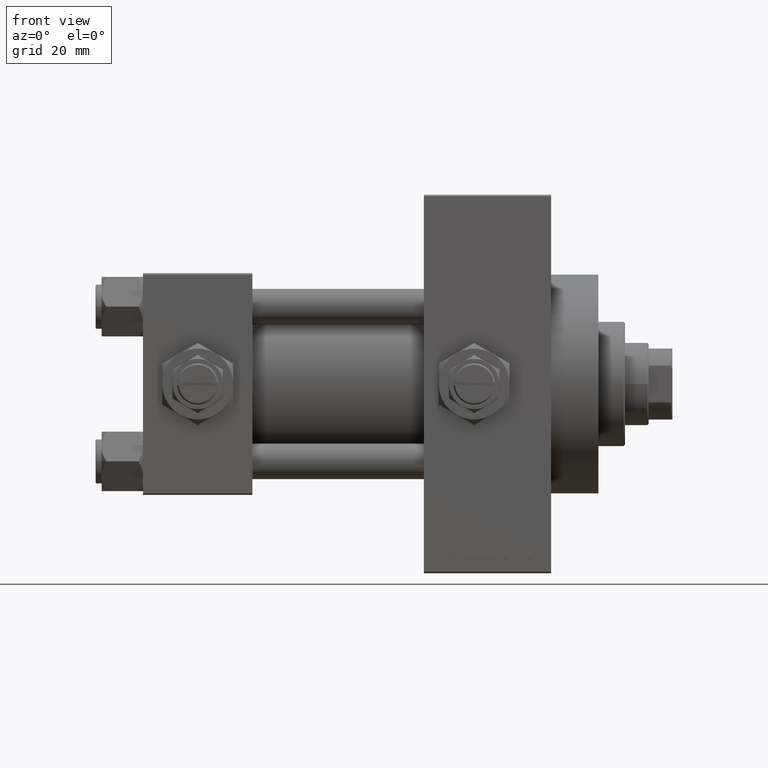
[diagram: clean part render]
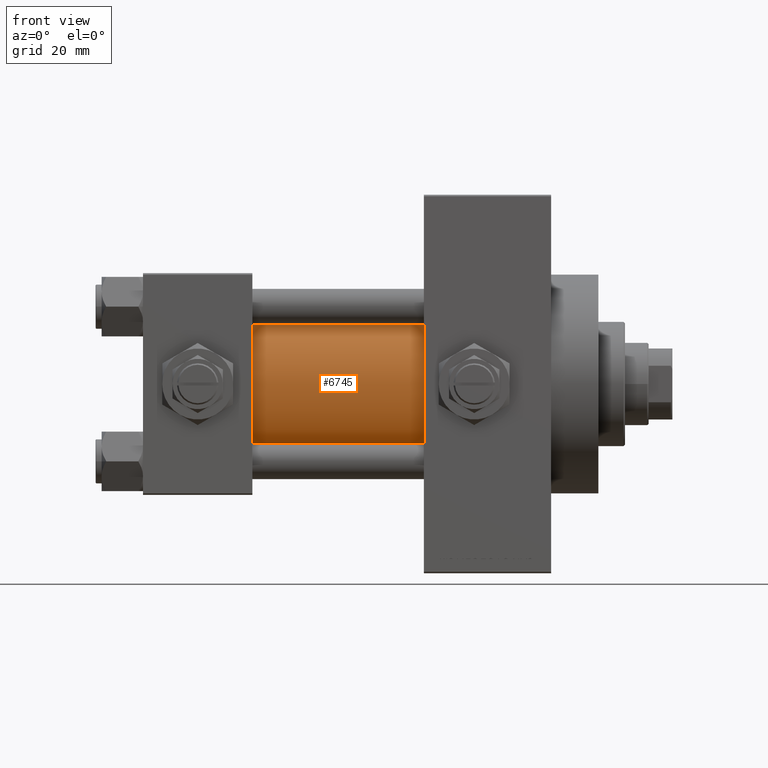
[diagram: same view with one face highlighted and labeled with its STEP entity id]
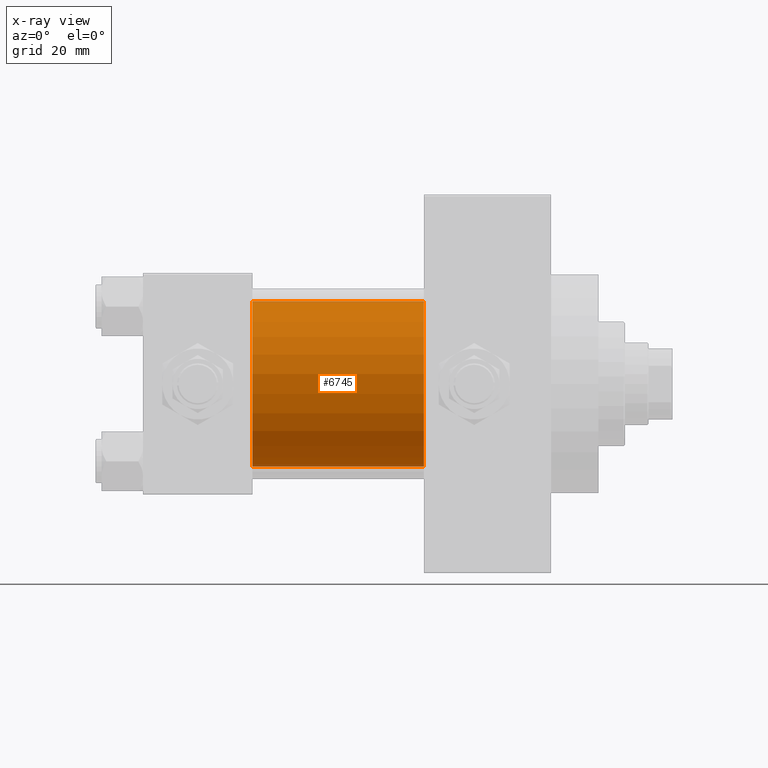
[diagram: x-ray of the same camera — body ghosted, the highlighted face saturated]
A machine part, front view. The second image highlights one B-rep face of the part: STEP entity #6745.
The next image is the same camera in x-ray: the body ghosted, the highlighted face saturated — about 2% of this face is hidden behind the body in this view.
In plain terms, the highlighted cylindrical surface (partial cylindrical patch) has radius 28 mm, axis along (-1, -0, -0).
Its self-contained STEP definition (entity closure, byte-faithful):
#269 = CARTESIAN_POINT ( 'NONE',  ( 37.00000000000000000, 8.269258236473776482E-16, -28.00000000000000000 ) ) ;
#550 = EDGE_CURVE ( 'NONE', #9166, #28823, #48955, .T. ) ;
#770 = CARTESIAN_POINT ( 'NONE',  ( 95.00000000000000000, -2.602085213965210642E-15, 28.00000000000000000 ) ) ;
#2319 = CARTESIAN_POINT ( 'NONE',  ( 95.00000000000000000, -2.602085213965210642E-15, 0.000000000000000000 ) ) ;
#2781 = ORIENTED_EDGE ( 'NONE', *, *, #44625, .T. ) ;
#3086 = CIRCLE ( 'NONE', #15815, 28.00000000000000000 ) ;
#4618 = FACE_OUTER_BOUND ( 'NONE', #37379, .T. ) ;
#5082 = CARTESIAN_POINT ( 'NONE',  ( 37.00000000000000000, -2.602085213965210642E-15, 0.000000000000000000 ) ) ;
#6208 = AXIS2_PLACEMENT_3D ( 'NONE', #2319, #21266, #35480 ) ;
#6745 = ADVANCED_FACE ( 'NONE', ( #4618 ), #27783, .T. ) ;
#7336 = DIRECTION ( 'NONE',  ( -1.000000000000000000, -0.000000000000000000, -0.000000000000000000 ) ) ;
#8853 = DIRECTION ( 'NONE',  ( -1.000000000000000000, -0.000000000000000000, -0.000000000000000000 ) ) ;
#9166 = VERTEX_POINT ( 'NONE', #16033 ) ;
#12425 = DIRECTION ( 'NONE',  ( -1.000000000000000000, -0.000000000000000000, -0.000000000000000000 ) ) ;
#15815 = AXIS2_PLACEMENT_3D ( 'NONE', #5082, #35471, #20525 ) ;
#16033 = CARTESIAN_POINT ( 'NONE',  ( 95.00000000000000000, -2.602085213965210642E-15, 28.00000000000000000 ) ) ;
#16561 = CARTESIAN_POINT ( 'NONE',  ( 95.00000000000000000, -2.602085213965210642E-15, 0.000000000000000000 ) ) ;
#19858 = EDGE_CURVE ( 'NONE', #40332, #31032, #39090, .T. ) ;
#20525 = DIRECTION ( 'NONE',  ( 0.000000000000000000, 0.000000000000000000, 1.000000000000000000 ) ) ;
#21266 = DIRECTION ( 'NONE',  ( 1.000000000000000000, 0.000000000000000000, 0.000000000000000000 ) ) ;
#21908 = AXIS2_PLACEMENT_3D ( 'NONE', #16561, #8853, #24053 ) ;
#24053 = DIRECTION ( 'NONE',  ( 0.000000000000000000, 0.000000000000000000, 1.000000000000000000 ) ) ;
#24613 = ORIENTED_EDGE ( 'NONE', *, *, #46128, .F. ) ;
#27749 = CARTESIAN_POINT ( 'NONE',  ( 37.00000000000000000, -2.602085213965210642E-15, 28.00000000000000000 ) ) ;
#27783 = CYLINDRICAL_SURFACE ( 'NONE', #21908, 28.00000000000000000 ) ;
#28823 = VERTEX_POINT ( 'NONE', #27749 ) ;
#31032 = VERTEX_POINT ( 'NONE', #269 ) ;
#31653 = CARTESIAN_POINT ( 'NONE',  ( 95.00000000000000000, 8.269258236473776482E-16, -28.00000000000000000 ) ) ;
#33774 = ORIENTED_EDGE ( 'NONE', *, *, #550, .T. ) ;
#35471 = DIRECTION ( 'NONE',  ( 1.000000000000000000, -0.000000000000000000, 0.000000000000000000 ) ) ;
#35480 = DIRECTION ( 'NONE',  ( 0.000000000000000000, 0.000000000000000000, -1.000000000000000000 ) ) ;
#37379 = EDGE_LOOP ( 'NONE', ( #48290, #24613, #33774, #2781 ) ) ;
#39090 = LINE ( 'NONE', #42596, #39791 ) ;
#39791 = VECTOR ( 'NONE', #12425, 1000.000000000000000 ) ;
#40332 = VERTEX_POINT ( 'NONE', #31653 ) ;
#42596 = CARTESIAN_POINT ( 'NONE',  ( 95.00000000000000000, 8.269258236473776482E-16, -28.00000000000000000 ) ) ;
#44625 = EDGE_CURVE ( 'NONE', #28823, #31032, #3086, .T. ) ;
#46128 = EDGE_CURVE ( 'NONE', #9166, #40332, #49198, .T. ) ;
#46415 = VECTOR ( 'NONE', #7336, 1000.000000000000000 ) ;
#48290 = ORIENTED_EDGE ( 'NONE', *, *, #19858, .F. ) ;
#48955 = LINE ( 'NONE', #770, #46415 ) ;
#49198 = CIRCLE ( 'NONE', #6208, 28.00000000000000000 ) ;